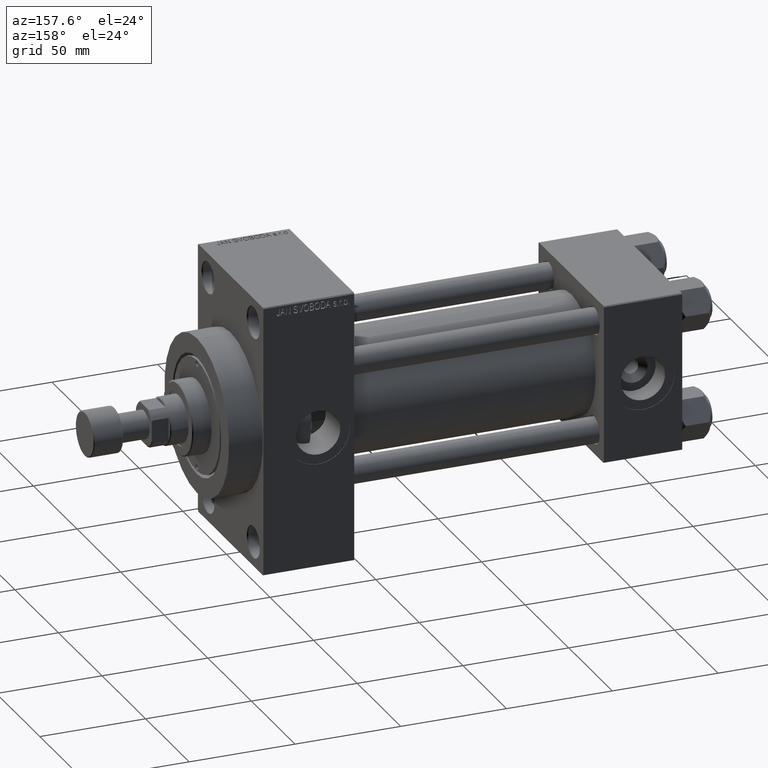
[diagram: clean part render]
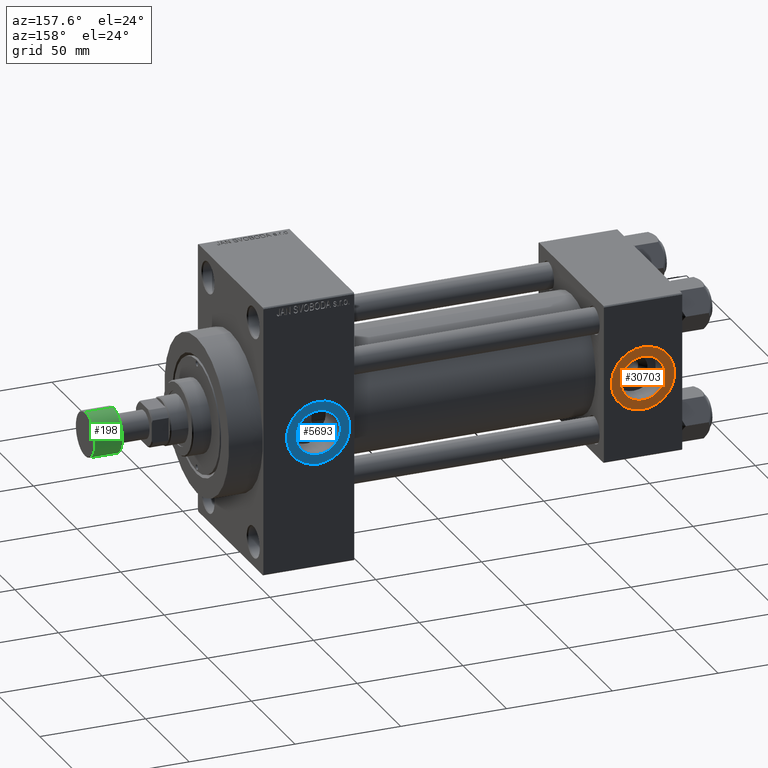
[diagram: same view with three faces highlighted in distinct colors, each labeled with its STEP entity id]
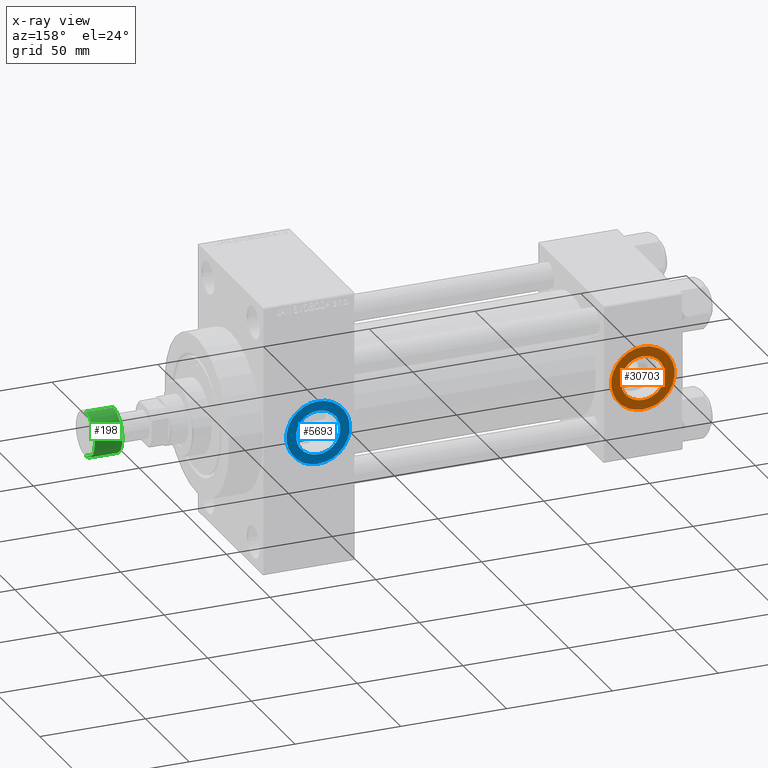
[diagram: x-ray of the same camera — body ghosted, the three highlighted faces saturated]
A machine part, auxiliary view with three faces highlighted in distinct colors.
The next image is the same camera in x-ray (body ghosted, the three faces saturated) — at least one of them is partly hidden behind the body in this view.
Their STEP definitions:

[orange] entity #30703 — the highlighted planar face has unit normal (0, 1, 0).
#294 = FACE_OUTER_BOUND ( 'NONE', #16698, .T. ) ;
#634 = CARTESIAN_POINT ( 'NONE',  ( 18.50000000000000000, 37.29999999999999005, 0.000000000000000000 ) ) ;
#951 = AXIS2_PLACEMENT_3D ( 'NONE', #634, #19014, #30133 ) ;
#1964 = VERTEX_POINT ( 'NONE', #21502 ) ;
#3168 = AXIS2_PLACEMENT_3D ( 'NONE', #22475, #4344, #40840 ) ;
#3449 = DIRECTION ( 'NONE',  ( 0.000000000000000000, -0.000000000000000000, 1.000000000000000000 ) ) ;
#4344 = DIRECTION ( 'NONE',  ( 0.000000000000000000, 1.000000000000000000, 0.000000000000000000 ) ) ;
#5190 = EDGE_CURVE ( 'NONE', #18477, #17125, #37251, .T. ) ;
#9935 = DIRECTION ( 'NONE',  ( 0.000000000000000000, 1.000000000000000000, 0.000000000000000000 ) ) ;
#10621 = ORIENTED_EDGE ( 'NONE', *, *, #12296, .T. ) ;
#12296 = EDGE_CURVE ( 'NONE', #32876, #1964, #25892, .T. ) ;
#13303 = CARTESIAN_POINT ( 'NONE',  ( 18.50000000000000000, 37.29999999999999005, 0.000000000000000000 ) ) ;
#13450 = CARTESIAN_POINT ( 'NONE',  ( 18.50000000000000000, 37.29999999999999005, 0.000000000000000000 ) ) ;
#13486 = EDGE_LOOP ( 'NONE', ( #43502, #45656 ) ) ;
#16698 = EDGE_LOOP ( 'NONE', ( #10621, #31824 ) ) ;
#17125 = VERTEX_POINT ( 'NONE', #29223 ) ;
#18477 = VERTEX_POINT ( 'NONE', #26988 ) ;
#18679 = FACE_BOUND ( 'NONE', #13486, .T. ) ;
#19014 = DIRECTION ( 'NONE',  ( 0.000000000000000000, 1.000000000000000000, 0.000000000000000000 ) ) ;
#21502 = CARTESIAN_POINT ( 'NONE',  ( 18.50000000000000355, 37.29999999999999005, -15.00000000000000178 ) ) ;
#22475 = CARTESIAN_POINT ( 'NONE',  ( 18.50000000000000000, 37.29999999999999005, 0.000000000000000000 ) ) ;
#25892 = CIRCLE ( 'NONE', #29004, 15.00000000000000178 ) ;
#26988 = CARTESIAN_POINT ( 'NONE',  ( 18.50000000000000000, 37.29999999999999005, 10.48000000000000043 ) ) ;
#29004 = AXIS2_PLACEMENT_3D ( 'NONE', #13303, #9935, #35786 ) ;
#29154 = AXIS2_PLACEMENT_3D ( 'NONE', #36557, #30029, #3449 ) ;
#29223 = CARTESIAN_POINT ( 'NONE',  ( 18.50000000000000000, 37.29999999999999005, -10.48000000000000043 ) ) ;
#30029 = DIRECTION ( 'NONE',  ( 0.000000000000000000, 1.000000000000000000, 0.000000000000000000 ) ) ;
#30133 = DIRECTION ( 'NONE',  ( 0.000000000000000000, 0.000000000000000000, 1.000000000000000000 ) ) ;
#30703 = ADVANCED_FACE ( 'NONE', ( #18679, #294 ), #33643, .T. ) ;
#31824 = ORIENTED_EDGE ( 'NONE', *, *, #38237, .T. ) ;
#32876 = VERTEX_POINT ( 'NONE', #36506 ) ;
#33643 = PLANE ( 'NONE',  #29154 ) ;
#35786 = DIRECTION ( 'NONE',  ( 0.000000000000000000, 0.000000000000000000, 1.000000000000000000 ) ) ;
#36285 = EDGE_CURVE ( 'NONE', #17125, #18477, #44787, .T. ) ;
#36506 = CARTESIAN_POINT ( 'NONE',  ( 18.50000000000000000, 37.29999999999999005, 15.00000000000000178 ) ) ;
#36557 = CARTESIAN_POINT ( 'NONE',  ( 18.50000000000000000, 37.29999999999999005, 0.000000000000000000 ) ) ;
#37251 = CIRCLE ( 'NONE', #951, 10.48000000000000043 ) ;
#38237 = EDGE_CURVE ( 'NONE', #1964, #32876, #38674, .T. ) ;
#38674 = CIRCLE ( 'NONE', #3168, 15.00000000000000178 ) ;
#39399 = AXIS2_PLACEMENT_3D ( 'NONE', #13450, #42491, #42722 ) ;
#40840 = DIRECTION ( 'NONE',  ( 0.000000000000000000, 0.000000000000000000, 1.000000000000000000 ) ) ;
#42491 = DIRECTION ( 'NONE',  ( 0.000000000000000000, 1.000000000000000000, 0.000000000000000000 ) ) ;
#42722 = DIRECTION ( 'NONE',  ( 0.000000000000000000, 0.000000000000000000, 1.000000000000000000 ) ) ;
#43502 = ORIENTED_EDGE ( 'NONE', *, *, #5190, .F. ) ;
#44787 = CIRCLE ( 'NONE', #39399, 10.48000000000000043 ) ;
#45656 = ORIENTED_EDGE ( 'NONE', *, *, #36285, .F. ) ;

[blue] entity #5693 — the highlighted planar face has unit normal (0, 1, 0).
#949 = ORIENTED_EDGE ( 'NONE', *, *, #7146, .T. ) ;
#3216 = DIRECTION ( 'NONE',  ( 0.000000000000000000, 1.000000000000000000, 0.000000000000000000 ) ) ;
#3447 = CARTESIAN_POINT ( 'NONE',  ( 172.0000000000000000, 37.29999999999999716, -2.032879073410320814E-15 ) ) ;
#3810 = VERTEX_POINT ( 'NONE', #11601 ) ;
#5693 = ADVANCED_FACE ( 'NONE', ( #38310, #46541 ), #16078, .T. ) ;
#7146 = EDGE_CURVE ( 'NONE', #43958, #39253, #35009, .T. ) ;
#10170 = CIRCLE ( 'NONE', #10926, 15.00000000000002487 ) ;
#10926 = AXIS2_PLACEMENT_3D ( 'NONE', #3447, #3216, #22059 ) ;
#11601 = CARTESIAN_POINT ( 'NONE',  ( 172.0000000000000000, 37.29999999999999005, 10.47999999999998444 ) ) ;
#11955 = ORIENTED_EDGE ( 'NONE', *, *, #38757, .T. ) ;
#12418 = DIRECTION ( 'NONE',  ( 0.000000000000000000, 1.000000000000000000, 0.000000000000000000 ) ) ;
#13000 = ORIENTED_EDGE ( 'NONE', *, *, #43606, .F. ) ;
#14003 = CARTESIAN_POINT ( 'NONE',  ( 172.0000000000000000, 37.29999999999999716, -2.032879073410320814E-15 ) ) ;
#14240 = DIRECTION ( 'NONE',  ( 0.000000000000000000, 0.000000000000000000, 1.000000000000000000 ) ) ;
#15232 = EDGE_LOOP ( 'NONE', ( #949, #11955 ) ) ;
#15336 = CARTESIAN_POINT ( 'NONE',  ( 172.0000000000000000, 37.29999999999999005, -2.032879073410320814E-15 ) ) ;
#15575 = DIRECTION ( 'NONE',  ( 0.000000000000000000, 0.000000000000000000, 1.000000000000000000 ) ) ;
#16078 = PLANE ( 'NONE',  #34949 ) ;
#19957 = CARTESIAN_POINT ( 'NONE',  ( 172.0000000000000000, 37.29999999999999716, -15.00000000000002665 ) ) ;
#20192 = DIRECTION ( 'NONE',  ( 0.000000000000000000, 1.000000000000000000, 0.000000000000000000 ) ) ;
#20836 = EDGE_LOOP ( 'NONE', ( #13000, #47322 ) ) ;
#21033 = DIRECTION ( 'NONE',  ( 0.000000000000000000, 1.000000000000000000, 0.000000000000000000 ) ) ;
#21226 = VERTEX_POINT ( 'NONE', #31441 ) ;
#21971 = DIRECTION ( 'NONE',  ( 0.000000000000000000, 1.000000000000000000, 0.000000000000000000 ) ) ;
#22059 = DIRECTION ( 'NONE',  ( 0.000000000000000000, 0.000000000000000000, 1.000000000000000000 ) ) ;
#22489 = EDGE_CURVE ( 'NONE', #21226, #3810, #38576, .T. ) ;
#27740 = AXIS2_PLACEMENT_3D ( 'NONE', #44432, #21971, #36465 ) ;
#28838 = AXIS2_PLACEMENT_3D ( 'NONE', #14003, #21033, #14240 ) ;
#31441 = CARTESIAN_POINT ( 'NONE',  ( 172.0000000000000000, 37.29999999999999005, -10.47999999999998799 ) ) ;
#33898 = CARTESIAN_POINT ( 'NONE',  ( 172.0000000000000000, 37.29999999999999716, 15.00000000000002309 ) ) ;
#34949 = AXIS2_PLACEMENT_3D ( 'NONE', #46057, #20192, #45578 ) ;
#35009 = CIRCLE ( 'NONE', #28838, 15.00000000000002487 ) ;
#36465 = DIRECTION ( 'NONE',  ( 0.000000000000000000, 0.000000000000000000, 1.000000000000000000 ) ) ;
#36774 = CIRCLE ( 'NONE', #43753, 10.47999999999998622 ) ;
#38310 = FACE_BOUND ( 'NONE', #20836, .T. ) ;
#38576 = CIRCLE ( 'NONE', #27740, 10.47999999999998622 ) ;
#38757 = EDGE_CURVE ( 'NONE', #39253, #43958, #10170, .T. ) ;
#39253 = VERTEX_POINT ( 'NONE', #19957 ) ;
#43606 = EDGE_CURVE ( 'NONE', #3810, #21226, #36774, .T. ) ;
#43753 = AXIS2_PLACEMENT_3D ( 'NONE', #15336, #12418, #15575 ) ;
#43958 = VERTEX_POINT ( 'NONE', #33898 ) ;
#44432 = CARTESIAN_POINT ( 'NONE',  ( 172.0000000000000000, 37.29999999999999005, -2.032879073410320814E-15 ) ) ;
#45578 = DIRECTION ( 'NONE',  ( 0.000000000000000000, -0.000000000000000000, 1.000000000000000000 ) ) ;
#46057 = CARTESIAN_POINT ( 'NONE',  ( 172.0000000000000000, 37.29999999999999716, -2.032879073410320814E-15 ) ) ;
#46541 = FACE_OUTER_BOUND ( 'NONE', #15232, .T. ) ;
#47322 = ORIENTED_EDGE ( 'NONE', *, *, #22489, .F. ) ;

[green] entity #198 — the highlighted cylindrical surface (edge-blend (fillet) strip) has radius 10.5 mm, axis along (1, 0, 0).
#27 = ORIENTED_EDGE ( 'NONE', *, *, #7913, .T. ) ;
#198 = ADVANCED_FACE ( 'NONE', ( #19949 ), #45808, .T. ) ;
#2016 = CIRCLE ( 'NONE', #8197, 10.50000000000000000 ) ;
#4984 = DIRECTION ( 'NONE',  ( 0.000000000000000000, 0.000000000000000000, 1.000000000000000000 ) ) ;
#5154 = DIRECTION ( 'NONE',  ( 0.000000000000000000, 0.000000000000000000, 1.000000000000000000 ) ) ;
#5628 = DIRECTION ( 'NONE',  ( 1.000000000000000000, 0.000000000000000000, 0.000000000000000000 ) ) ;
#6416 = DIRECTION ( 'NONE',  ( 1.000000000000000000, 0.000000000000000000, 0.000000000000000000 ) ) ;
#7913 = EDGE_CURVE ( 'NONE', #12011, #18694, #46591, .T. ) ;
#8197 = AXIS2_PLACEMENT_3D ( 'NONE', #14351, #21629, #6416 ) ;
#9490 = LINE ( 'NONE', #44193, #33757 ) ;
#10295 = VECTOR ( 'NONE', #4984, 1000.000000000000000 ) ;
#11623 = CARTESIAN_POINT ( 'NONE',  ( -10.50000000000000000, 1.285879139104720831E-15, -13.50000000000000000 ) ) ;
#12011 = VERTEX_POINT ( 'NONE', #37395 ) ;
#12450 = CARTESIAN_POINT ( 'NONE',  ( -10.50000000000000000, 1.285879139104720831E-15, -14.00000000000000000 ) ) ;
#12671 = DIRECTION ( 'NONE',  ( 0.000000000000000000, 0.000000000000000000, 1.000000000000000000 ) ) ;
#14351 = CARTESIAN_POINT ( 'NONE',  ( 0.000000000000000000, 0.000000000000000000, -0.5000000000000004441 ) ) ;
#15092 = ORIENTED_EDGE ( 'NONE', *, *, #17378, .T. ) ;
#15584 = AXIS2_PLACEMENT_3D ( 'NONE', #34923, #12671, #45087 ) ;
#16492 = VERTEX_POINT ( 'NONE', #45043 ) ;
#17378 = EDGE_CURVE ( 'NONE', #16492, #38127, #2016, .T. ) ;
#18694 = VERTEX_POINT ( 'NONE', #11623 ) ;
#19949 = FACE_OUTER_BOUND ( 'NONE', #43777, .T. ) ;
#20162 = EDGE_CURVE ( 'NONE', #12011, #38127, #9490, .T. ) ;
#21629 = DIRECTION ( 'NONE',  ( -0.000000000000000000, -0.000000000000000000, -1.000000000000000000 ) ) ;
#24296 = ORIENTED_EDGE ( 'NONE', *, *, #40173, .T. ) ;
#33078 = DIRECTION ( 'NONE',  ( 0.000000000000000000, 0.000000000000000000, 1.000000000000000000 ) ) ;
#33757 = VECTOR ( 'NONE', #33078, 1000.000000000000000 ) ;
#34923 = CARTESIAN_POINT ( 'NONE',  ( 0.000000000000000000, 0.000000000000000000, -14.00000000000000000 ) ) ;
#34940 = LINE ( 'NONE', #12450, #10295 ) ;
#37395 = CARTESIAN_POINT ( 'NONE',  ( 10.50000000000000000, 0.000000000000000000, -13.50000000000000000 ) ) ;
#38127 = VERTEX_POINT ( 'NONE', #46682 ) ;
#40173 = EDGE_CURVE ( 'NONE', #18694, #16492, #34940, .T. ) ;
#41886 = CARTESIAN_POINT ( 'NONE',  ( 0.000000000000000000, 0.000000000000000000, -13.50000000000000000 ) ) ;
#41949 = AXIS2_PLACEMENT_3D ( 'NONE', #41886, #5154, #5628 ) ;
#43777 = EDGE_LOOP ( 'NONE', ( #27, #24296, #15092, #47200 ) ) ;
#44193 = CARTESIAN_POINT ( 'NONE',  ( 10.50000000000000000, 0.000000000000000000, -14.00000000000000000 ) ) ;
#45043 = CARTESIAN_POINT ( 'NONE',  ( -10.50000000000000000, 1.285879139104720831E-15, -0.5000000000000004441 ) ) ;
#45087 = DIRECTION ( 'NONE',  ( 1.000000000000000000, 0.000000000000000000, 0.000000000000000000 ) ) ;
#45808 = CYLINDRICAL_SURFACE ( 'NONE', #15584, 10.50000000000000000 ) ;
#46591 = CIRCLE ( 'NONE', #41949, 10.50000000000000000 ) ;
#46682 = CARTESIAN_POINT ( 'NONE',  ( 10.50000000000000000, 0.000000000000000000, -0.5000000000000004441 ) ) ;
#47200 = ORIENTED_EDGE ( 'NONE', *, *, #20162, .F. ) ;